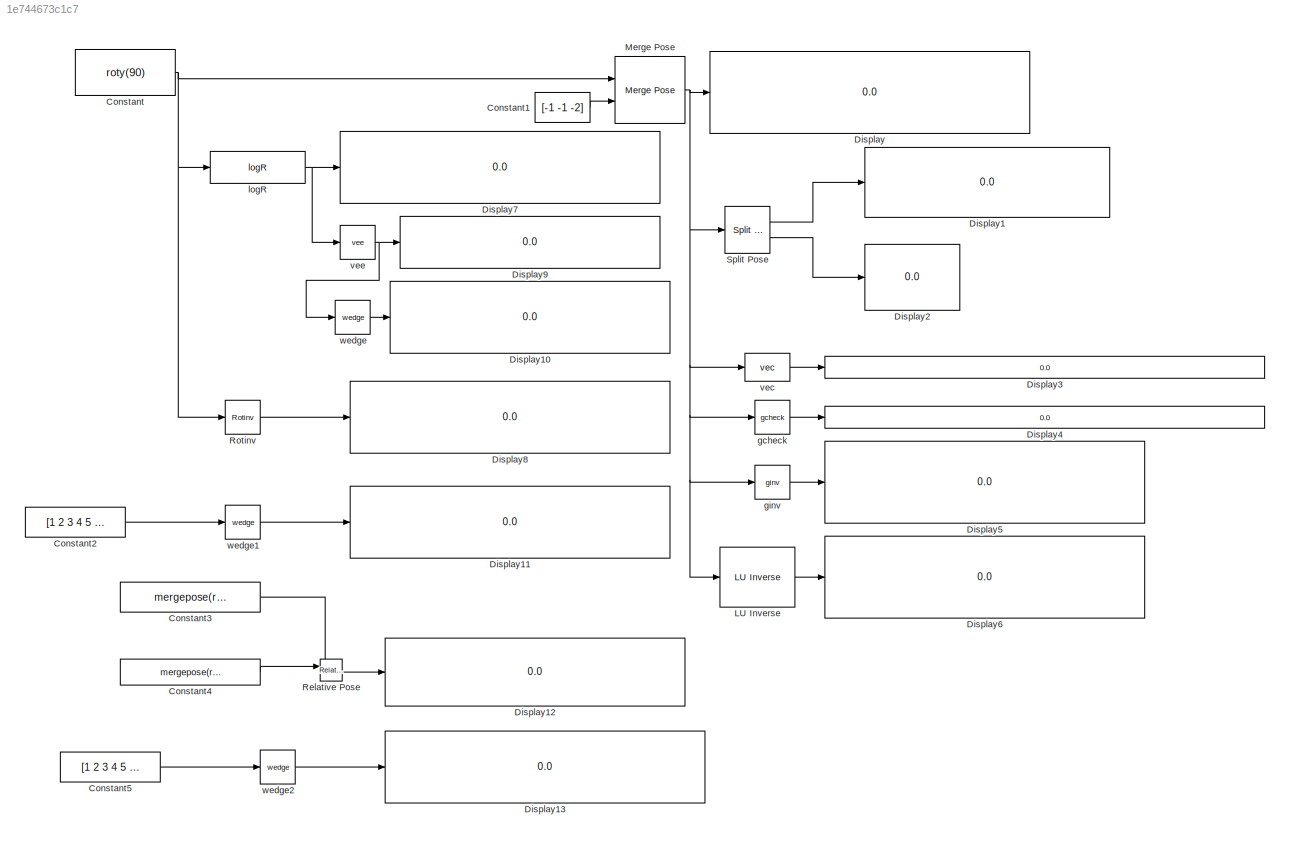
MODEL slx_1e744673c1c7
KIND model
CONFIG AbsTol = auto
CONFIG EnableMultiTasking = off
CONFIG FixedStep = auto
CONFIG MaxStep = auto
CONFIG MinStep = auto
CONFIG RelTol = 1e-3
CONFIG SampleTimeConstraint = Unconstrained
CONFIG SolverName = VariableStepAuto
CONFIG StartTime = 0.0
CONFIG StopTime = 10.0
BLOCK [Reference]  LU Inverse  REF=dspinverses/ LU Inverse
  Ports = [1, 1]
  SourceBlock = dspinverses/ LU Inverse
  SourceProductBaseCode = DS
  SourceType = LU Inverse
BLOCK [Constant] Constant
  Value = roty(90)
BLOCK [Constant] Constant1
  Value = [-1 -1 -2]
BLOCK [Constant] Constant2
  Value = [1 2 3 4 5 6]
BLOCK [Constant] Constant3
  Value = mergepose(rotx(90),[1 0 0])
BLOCK [Constant] Constant4
  Value = mergepose(roty(90),[0 1 0])
BLOCK [Constant] Constant5
  Value = [1 2 3 4 5 6]
BLOCK [Display] Display
  Decimation = 1
  Ports = [1]
BLOCK [Display] Display1
  Decimation = 1
  Ports = [1]
BLOCK [Display] Display10
  Decimation = 1
  Ports = [1]
BLOCK [Display] Display11
  Decimation = 1
  Ports = [1]
BLOCK [Display] Display12
  Decimation = 1
  Ports = [1]
BLOCK [Display] Display13
  Decimation = 1
  Ports = [1]
BLOCK [Display] Display2
  Decimation = 1
  Ports = [1]
BLOCK [Display] Display3
  Decimation = 1
  Ports = [1]
BLOCK [Display] Display4
  Decimation = 1
  Ports = [1]
BLOCK [Display] Display5
  Decimation = 1
  Ports = [1]
BLOCK [Display] Display6
  Decimation = 1
  Ports = [1]
BLOCK [Display] Display7
  Decimation = 1
  Ports = [1]
BLOCK [Display] Display8
  Decimation = 1
  Ports = [1]
BLOCK [Display] Display9
  Decimation = 1
  Ports = [1]
BLOCK [Reference] Merge Pose  REF=simlib_vpc_coremath/Merge Pose
  Ports = [2, 1]
  SourceBlock = simlib_vpc_coremath/Merge Pose
  SourceProductName = VPC Library
  SourceType = Merge pose [V1]
BLOCK [Reference] Relative Pose  REF=simlib_vpc_coremath/Relative Pose
  Ports = [2, 1]
  SourceBlock = simlib_vpc_coremath/Relative Pose
  SourceProductName = VPC Library
  SourceType = Relative Pose Block [V1]
BLOCK [Reference] Rotinv  REF=simlib_vpc_coremath/Rotinv
  Ports = [1, 1]
  SourceBlock = simlib_vpc_coremath/Rotinv
  SourceProductName = VPC Library
  SourceType = Invert rotation [V1]
BLOCK [Reference] Split Pose  REF=simlib_vpc_coremath/Split Pose
  Ports = [1, 2]
  SourceBlock = simlib_vpc_coremath/Split Pose
  SourceProductName = VPC Library
  SourceType = Split pose [V1]
BLOCK [Reference] gcheck  REF=simlib_vpc_coremath/gcheck
  Ports = [1, 1]
  SourceBlock = simlib_vpc_coremath/gcheck
  SourceProductName = VPC Library
  SourceType = Check Transform [V1]
BLOCK [Reference] ginv  REF=simlib_vpc_coremath/ginv
  Ports = [1, 1]
  SourceBlock = simlib_vpc_coremath/ginv
  SourceProductName = VPC Library
  SourceType = Invert pose [V1]
BLOCK [Reference] logR  REF=simlib_vpc_coremath/logR
  Ports = [1, 1]
  SourceBlock = simlib_vpc_coremath/logR
  SourceProductName = VPC Library
  SourceType = Inverse rotation exponential function [V1]
BLOCK [Reference] vec  REF=simlib_vpc_coremath/vec
  Ports = [1, 1]
  SourceBlock = simlib_vpc_coremath/vec
  SourceProductName = VPC Library
  SourceType = Vec Transform [V1]
BLOCK [Reference] vee  REF=simlib_vpc_coremath/vee
  Ports = [1, 1]
  SourceBlock = simlib_vpc_coremath/vee
  SourceProductName = VPC Library
  SourceType = Vee Transform [V1]
BLOCK [Reference] wedge  REF=simlib_vpc_coremath/wedge
  Ports = [1, 1]
  SourceBlock = simlib_vpc_coremath/wedge
  SourceProductName = VPC Library
  SourceType = Wedge Transform [V1]
BLOCK [Reference] wedge1  REF=simlib_vpc_coremath/wedge
  Ports = [1, 1]
  SourceBlock = simlib_vpc_coremath/wedge
  SourceProductName = VPC Library
  SourceType = Wedge Transform [V1]
BLOCK [Reference] wedge2  REF=simlib_vpc_coremath/wedge
  Ports = [1, 1]
  SourceBlock = simlib_vpc_coremath/wedge
  SourceProductName = VPC Library
  SourceType = Wedge Transform [V1]
LINE  LU Inverse:1 -> Display6:1
LINE Constant1:1 -> Merge Pose:2
LINE Constant2:1 -> wedge1:1
LINE Constant3:1 -> Relative Pose:2
LINE Constant4:1 -> Relative Pose:1
LINE Constant5:1 -> wedge2:1
NET Constant:1 -> Merge Pose:1, Rotinv:1, logR:1
NET Merge Pose:1 ->  LU Inverse:1, Display:1, Split Pose:1, gcheck:1, ginv:1, vec:1
LINE Relative Pose:1 -> Display12:1
LINE Rotinv:1 -> Display8:1
LINE Split Pose:1 -> Display1:1
LINE Split Pose:2 -> Display2:1
LINE gcheck:1 -> Display4:1
LINE ginv:1 -> Display5:1
NET logR:1 -> Display7:1, vee:1
LINE vec:1 -> Display3:1
NET vee:1 -> Display9:1, wedge:1
LINE wedge1:1 -> Display11:1
LINE wedge2:1 -> Display13:1
LINE wedge:1 -> Display10:1
note: NET lines group one-source signal fan-out (src -> all destinations, sorted); 1:1 wires keep LINE
